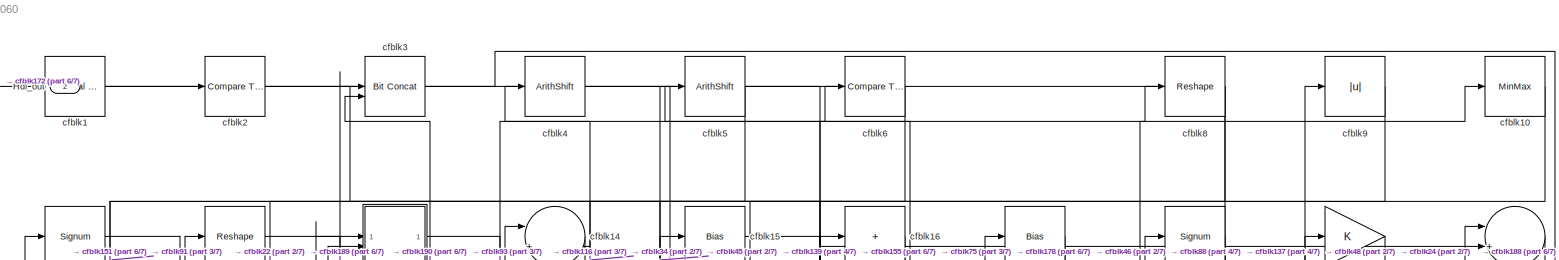
[diagram: root canvas - part 1/7, full width, top band]
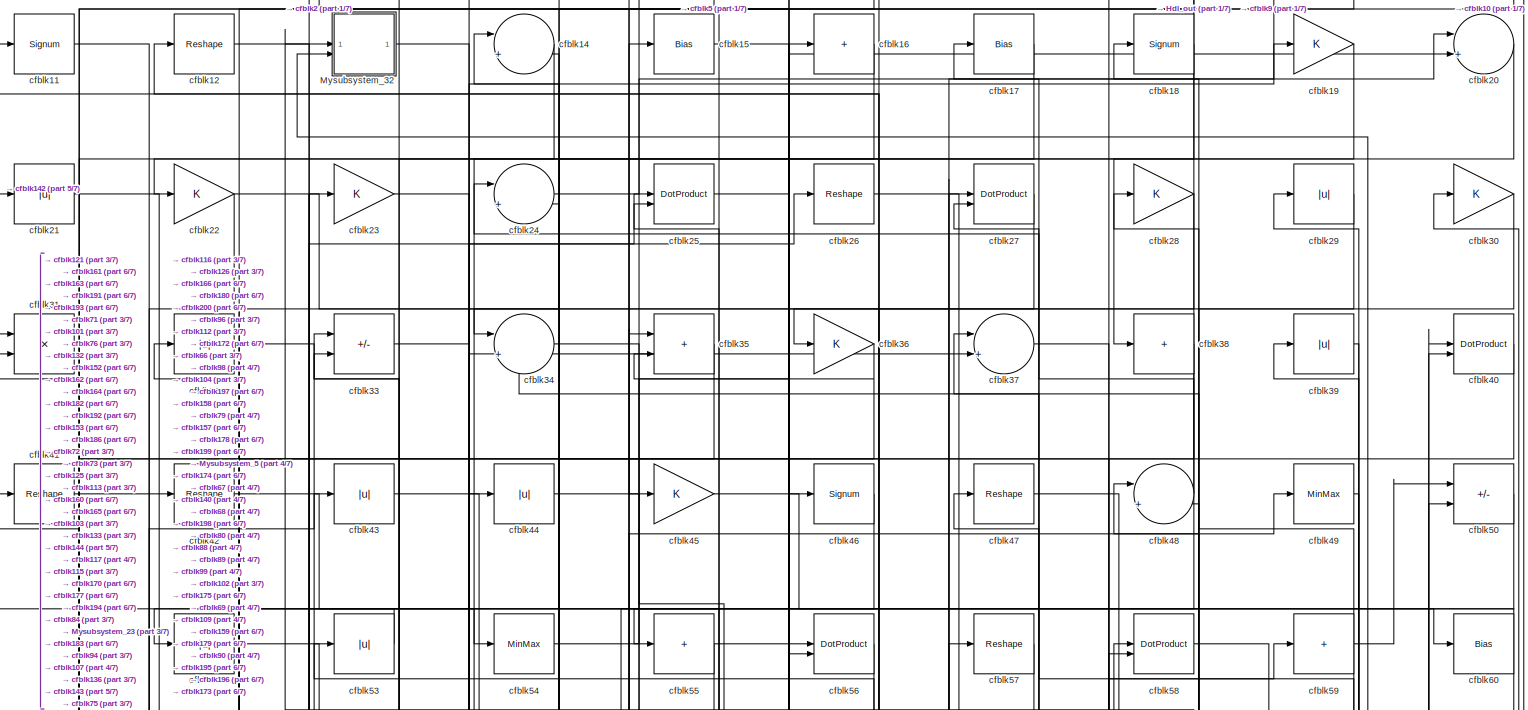
[diagram: root canvas - part 2/7, full width, top band]
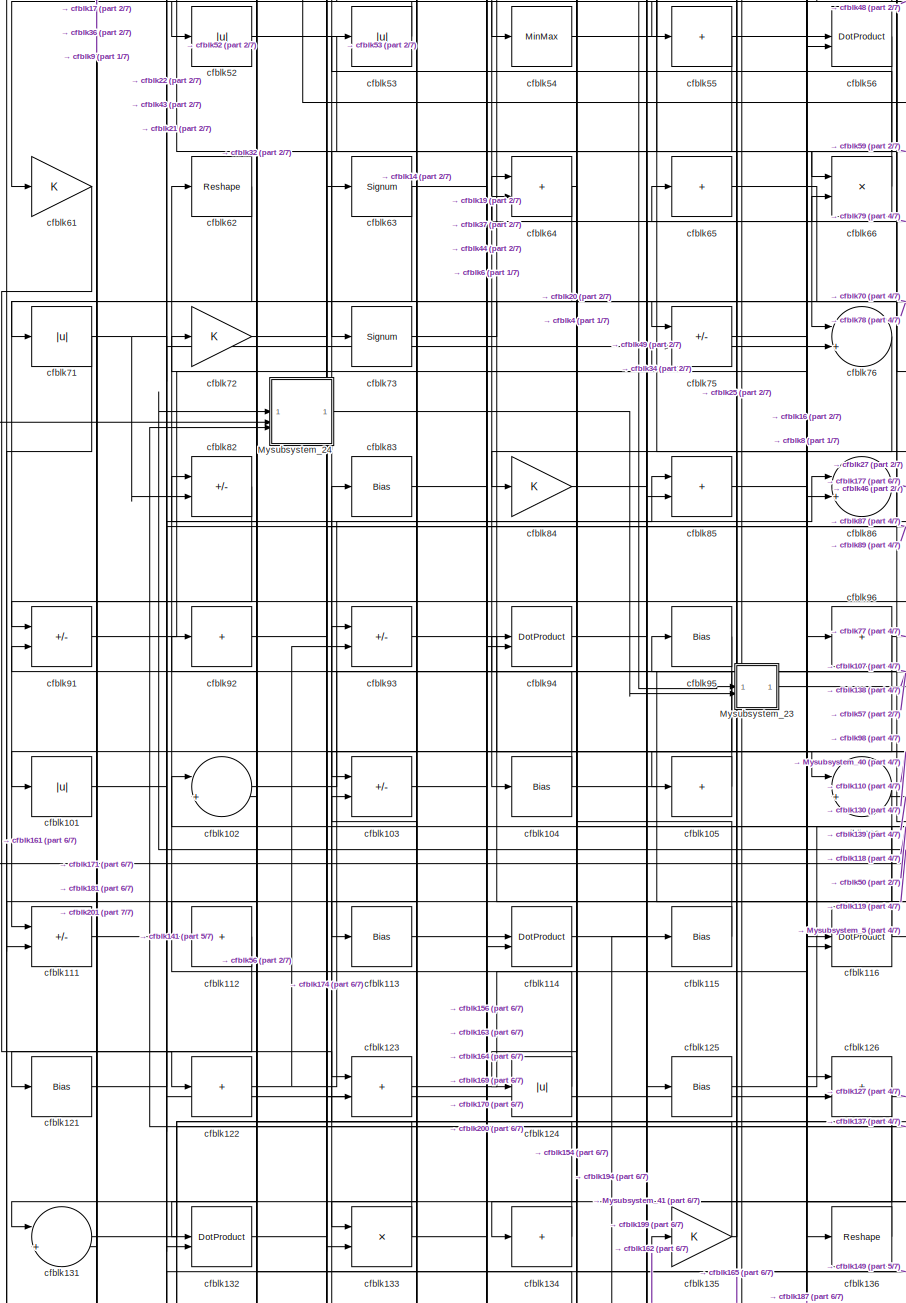
[diagram: root canvas - part 3/7, middle left region]
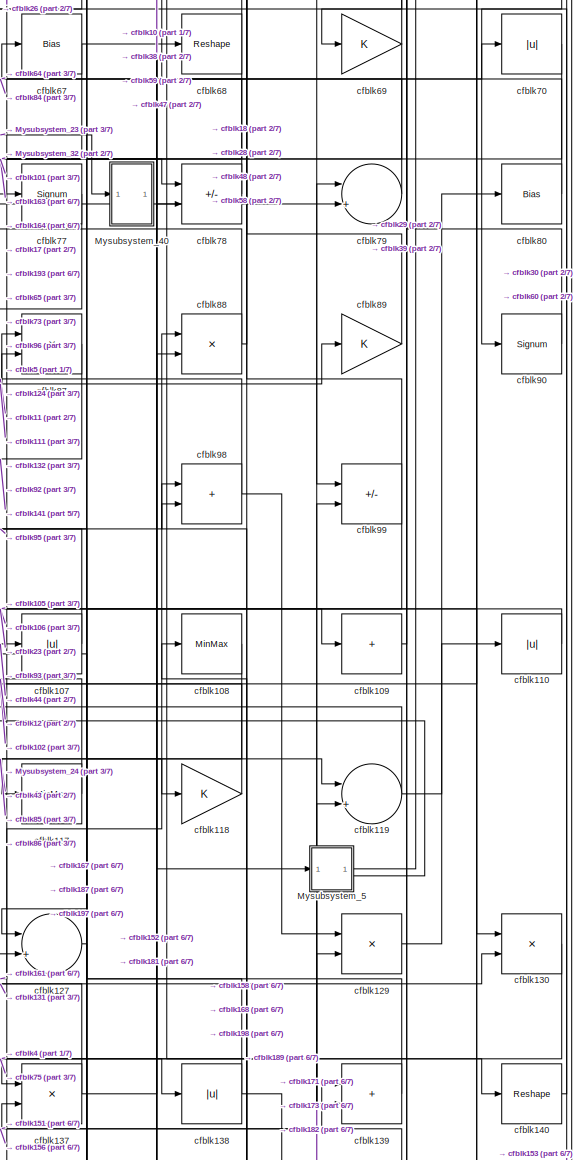
[diagram: root canvas - part 4/7, middle right region]
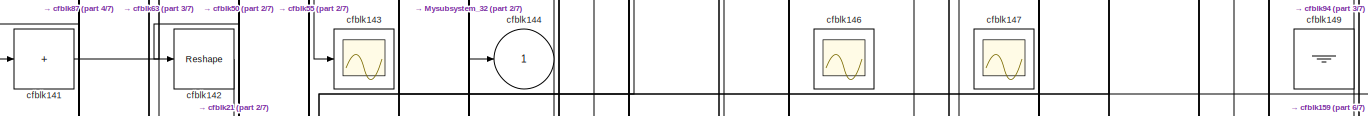
[diagram: root canvas - part 5/7, full width, bottom band]
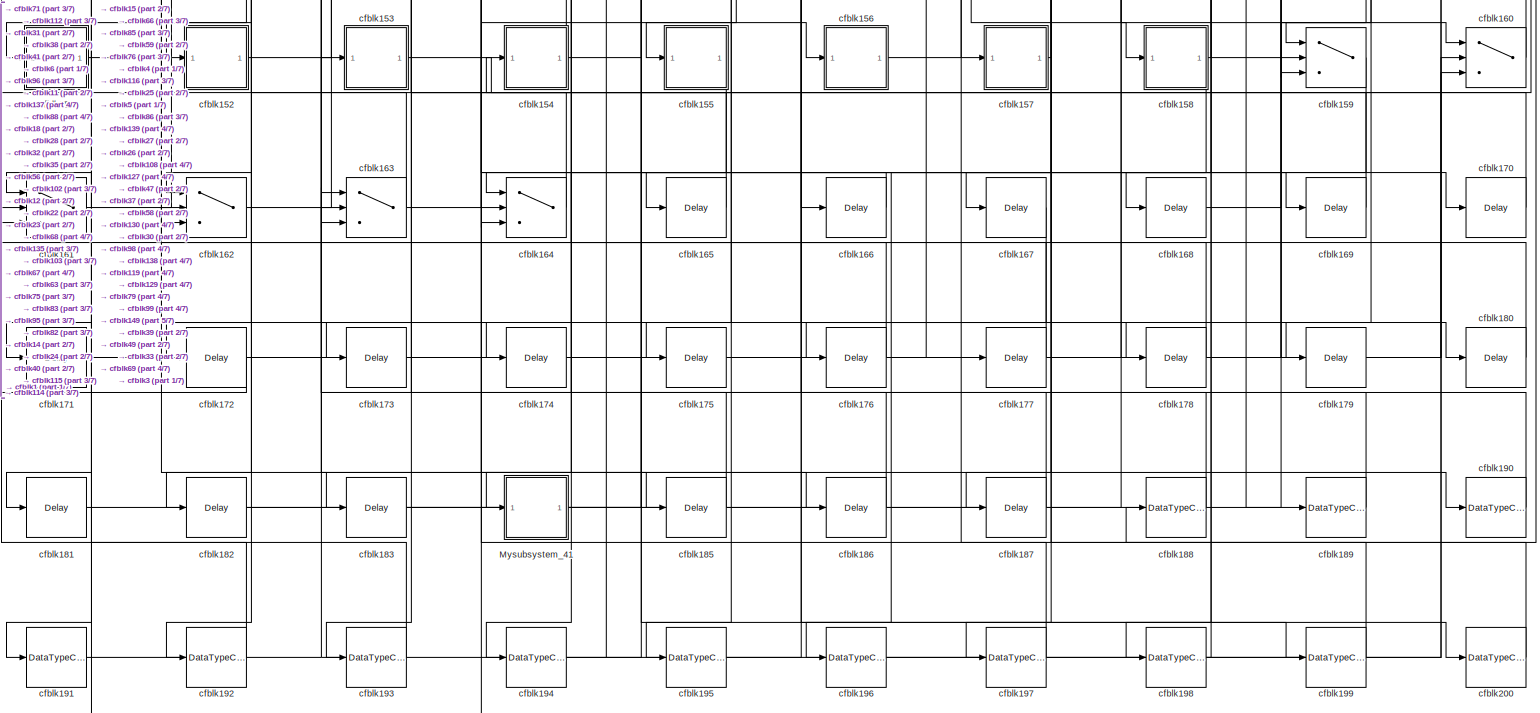
[diagram: root canvas - part 6/7, full width, bottom band]
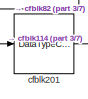
[diagram: root canvas - part 7/7, bottom left region]
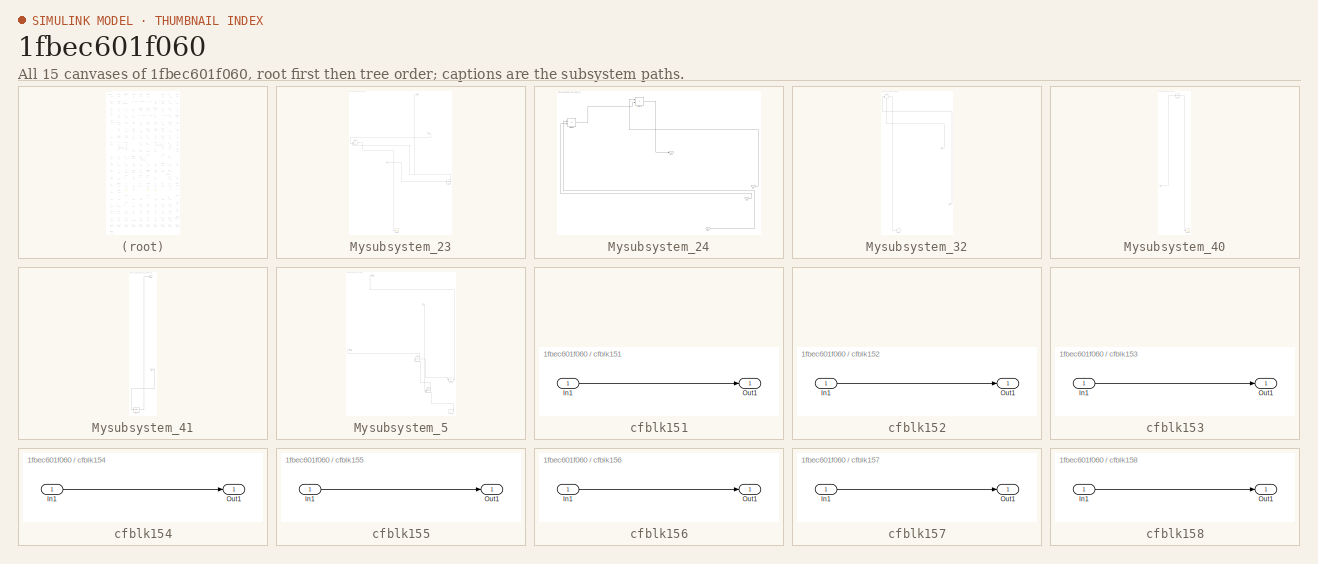
[diagram: thumbnail index - all 15 canvases of the model, root first then tree order]
MODEL slx_1fbec601f060
KIND model
CONFIG AbsTol = auto
CONFIG EnableMultiTasking = off
CONFIG FixedStep = auto
CONFIG MaxStep = auto
CONFIG MinStep = auto
CONFIG RelTol = 1e-3
CONFIG SampleTimeConstraint = Unconstrained
CONFIG SolverName = VariableStepAuto
CONFIG StartTime = 0.0
CONFIG StopTime = 10.0
BLOCK [Outport] Hdl_out
  OutDataTypeStr = uint8
  Port = 2
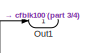
[diagram: Mysubsystem_23 - part 1/4, top center region]
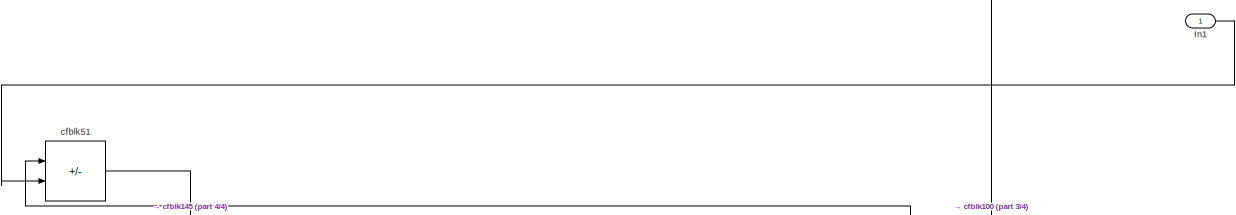
[diagram: Mysubsystem_23 - part 2/4, full width, top band]
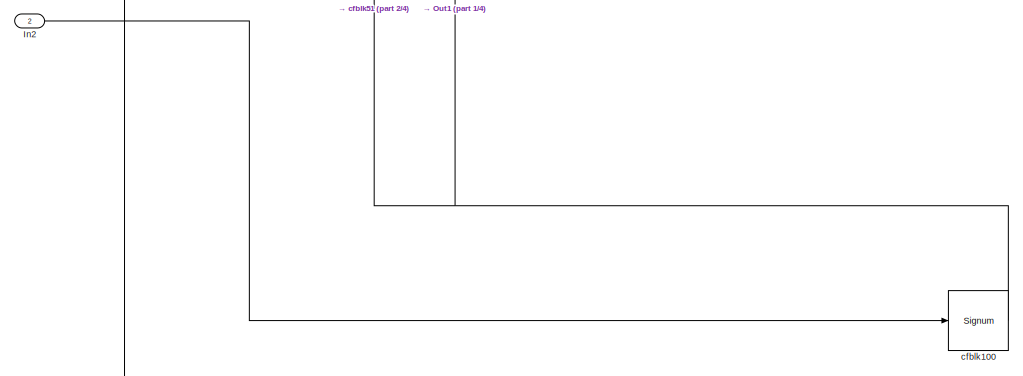
[diagram: Mysubsystem_23 - part 3/4, middle right region]
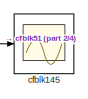
[diagram: Mysubsystem_23 - part 4/4, bottom center region]
BLOCK [SubSystem] Mysubsystem_23
  RTWFcnName = Mysubsystem_23
  RTWFcnNameOpts = User specified
  RTWFileNameOpts = Use function name
  RTWSystemCode = Reusable function
  TreatAsAtomicUnit = on
BLOCK [Inport] Mysubsystem_23/In1
BLOCK [Inport] Mysubsystem_23/In2
  Port = 2
BLOCK [Outport] Mysubsystem_23/Out1
BLOCK [Signum] Mysubsystem_23/cfblk100
BLOCK [Scope] Mysubsystem_23/cfblk145
  Floating = off
  NumInputPorts = 1
  ScopeSpecificationString = Simulink.scopes.TimeScopeBlockCfg('CurrentConfiguration', extmgr.ConfigurationSet(extmgr.Configuration('Core','General UI',true),extmgr.Configuration('Core','Source UI',true),extmgr.Configuration('Sources','WiredSimulink',true,'DataLoggingVariableName','ScopeData2','DataLoggingSaveFormat','Array','DataLoggingLimitDataPoints',true,'DataLoggingDecimation','1'),extmgr.Configuration('Visuals','Time Do...<+868ch>  <repeated x3 — deduplicated; at blocks: cfblk145, cfblk148, cfblk143>
BLOCK [Sum] Mysubsystem_23/cfblk51
  IconShape = rectangular
  Inputs = +-
BLOCK [SubSystem] Mysubsystem_24
  RTWFcnName = Mysubsystem_24
  RTWFcnNameOpts = User specified
  RTWFileNameOpts = Use function name
  RTWSystemCode = Reusable function
  TreatAsAtomicUnit = on
BLOCK [Inport] Mysubsystem_24/In1
BLOCK [Inport] Mysubsystem_24/In2
  Port = 2
BLOCK [Inport] Mysubsystem_24/In3
  Port = 3
BLOCK [Outport] Mysubsystem_24/Out1
BLOCK [Sum] Mysubsystem_24/cfblk74
  IconShape = rectangular
BLOCK [Product] Mysubsystem_24/cfblk81
  Inputs = */
  RndMeth = Zero
  SaturateOnIntegerOverflow = on
BLOCK [SubSystem] Mysubsystem_32
  RTWFcnName = Mysubsystem_32
  RTWFcnNameOpts = User specified
  RTWFileNameOpts = Use function name
  RTWSystemCode = Reusable function
  TreatAsAtomicUnit = on
BLOCK [Inport] Mysubsystem_32/In1
BLOCK [Inport] Mysubsystem_32/In2
  Port = 2
BLOCK [Sum] Mysubsystem_32/cfblk13
  Inputs = |++
BLOCK [Outport] Mysubsystem_32/cfblk144
  VectorParamsAs1DForOutWhenUnconnected = off
BLOCK [SubSystem] Mysubsystem_40
  RTWFcnName = Mysubsystem_40
  RTWFcnNameOpts = User specified
  RTWFileNameOpts = Use function name
  RTWSystemCode = Reusable function
  TreatAsAtomicUnit = on
BLOCK [Inport] Mysubsystem_40/In1
BLOCK [Scope] Mysubsystem_40/cfblk148
  Floating = off
  NumInputPorts = 1
BLOCK [Reshape] Mysubsystem_40/cfblk7
BLOCK [SubSystem] Mysubsystem_41
  RTWFcnName = Mysubsystem_41
  RTWFcnNameOpts = User specified
  RTWFileNameOpts = Use function name
  RTWSystemCode = Reusable function
  TreatAsAtomicUnit = on
BLOCK [Inport] Mysubsystem_41/In1
BLOCK [Outport] Mysubsystem_41/Out1
BLOCK [Delay] Mysubsystem_41/cfblk184
  InputPortMap = u0
  SampleTime = 1
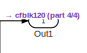
[diagram: Mysubsystem_5 - part 1/4, top left region]
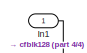
[diagram: Mysubsystem_5 - part 2/4, top right region]
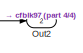
[diagram: Mysubsystem_5 - part 3/4, middle left region]
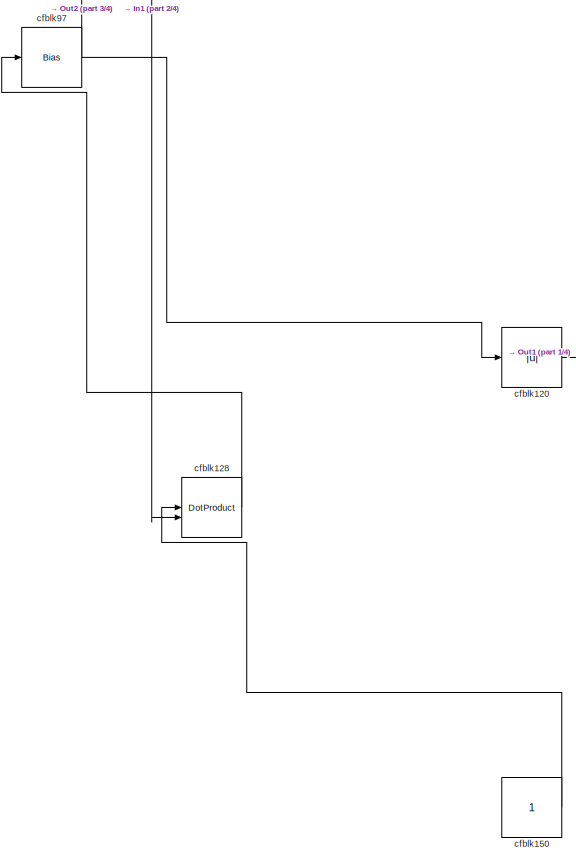
[diagram: Mysubsystem_5 - part 4/4, bottom right region]
BLOCK [SubSystem] Mysubsystem_5
  RTWFcnName = Mysubsystem_5
  RTWFcnNameOpts = User specified
  RTWFileNameOpts = Use function name
  RTWSystemCode = Reusable function
  TreatAsAtomicUnit = on
BLOCK [Inport] Mysubsystem_5/In1
BLOCK [Outport] Mysubsystem_5/Out1
BLOCK [Outport] Mysubsystem_5/Out2
  Port = 2
BLOCK [Abs] Mysubsystem_5/cfblk120
  SaturateOnIntegerOverflow = off
BLOCK [DotProduct] Mysubsystem_5/cfblk128
  OutDataTypeStr = Inherit: Inherit via internal rule
BLOCK [Constant] Mysubsystem_5/cfblk150
  SampleTime = -1
BLOCK [Bias] Mysubsystem_5/cfblk97
  Bias = 0.0
  SaturateOnIntegerOverflow = off
BLOCK [Reference] cfblk1  REF=hdlsllib/Logic and Bit
Operations/Interval Test
  SourceBlock = hdlsllib/Logic and Bit\nOperations/Interval Test
  SourceType = Interval Test
BLOCK [MinMax] cfblk10
  OutDataTypeStr = uint8
BLOCK [Abs] cfblk101
  OutDataTypeStr = uint8
  SaturateOnIntegerOverflow = off
BLOCK [Sum] cfblk102
  Inputs = |++
  OutDataTypeStr = uint8
BLOCK [Sum] cfblk103
  IconShape = rectangular
  Inputs = +-
  OutDataTypeStr = uint8
BLOCK [Bias] cfblk104
  Bias = 0.0
  SaturateOnIntegerOverflow = off
BLOCK [Sum] cfblk105
  IconShape = rectangular
  Inputs = +
  OutDataTypeStr = uint8
BLOCK [Sum] cfblk106
  Inputs = |++
  OutDataTypeStr = uint8
BLOCK [Abs] cfblk107
  OutDataTypeStr = uint8
  SaturateOnIntegerOverflow = off
BLOCK [MinMax] cfblk108
  OutDataTypeStr = uint8
BLOCK [Sum] cfblk109
  IconShape = rectangular
  Inputs = +
  OutDataTypeStr = uint8
BLOCK [Signum] cfblk11
BLOCK [Abs] cfblk110
  OutDataTypeStr = uint8
  SaturateOnIntegerOverflow = off
BLOCK [Sum] cfblk111
  IconShape = rectangular
  Inputs = +-
  OutDataTypeStr = uint8
BLOCK [Sum] cfblk112
  IconShape = rectangular
  Inputs = +
  OutDataTypeStr = uint8
BLOCK [Bias] cfblk113
  Bias = 0.0
  SaturateOnIntegerOverflow = off
BLOCK [DotProduct] cfblk114
  OutDataTypeStr = uint8
BLOCK [Bias] cfblk115
  Bias = 0.0
  SaturateOnIntegerOverflow = off
BLOCK [DotProduct] cfblk116
  OutDataTypeStr = uint8
BLOCK [MinMax] cfblk117
  OutDataTypeStr = uint8
BLOCK [Gain] cfblk118
  OutDataTypeStr = uint8
BLOCK [Sum] cfblk119
  Inputs = |++
  OutDataTypeStr = uint8
BLOCK [Reshape] cfblk12
BLOCK [Bias] cfblk121
  Bias = 0.0
  SaturateOnIntegerOverflow = off
BLOCK [Sum] cfblk122
  IconShape = rectangular
  Inputs = +
  OutDataTypeStr = uint8
BLOCK [Sum] cfblk123
  IconShape = rectangular
  OutDataTypeStr = uint8
BLOCK [Abs] cfblk124
  OutDataTypeStr = uint8
  SaturateOnIntegerOverflow = off
BLOCK [Bias] cfblk125
  Bias = 0.0
  SaturateOnIntegerOverflow = off
BLOCK [Sum] cfblk126
  IconShape = rectangular
  OutDataTypeStr = uint8
BLOCK [Sum] cfblk127
  Inputs = |++
  OutDataTypeStr = uint8
BLOCK [Product] cfblk129
  Inputs = */
  OutDataTypeStr = uint8
  RndMeth = Zero
  SaturateOnIntegerOverflow = on
BLOCK [Product] cfblk130
  Inputs = */
  OutDataTypeStr = uint8
  RndMeth = Zero
  SaturateOnIntegerOverflow = on
BLOCK [Sum] cfblk131
  Inputs = |++
  OutDataTypeStr = uint8
BLOCK [DotProduct] cfblk132
  OutDataTypeStr = uint8
BLOCK [Product] cfblk133
  Inputs = */
  OutDataTypeStr = uint8
  RndMeth = Zero
  SaturateOnIntegerOverflow = on
BLOCK [Sum] cfblk134
  IconShape = rectangular
  Inputs = +
  OutDataTypeStr = uint8
BLOCK [Gain] cfblk135
  OutDataTypeStr = uint8
BLOCK [Reshape] cfblk136
BLOCK [Product] cfblk137
  Inputs = */
  OutDataTypeStr = uint8
  RndMeth = Zero
  SaturateOnIntegerOverflow = on
BLOCK [Abs] cfblk138
  OutDataTypeStr = uint8
  SaturateOnIntegerOverflow = off
BLOCK [Sum] cfblk139
  IconShape = rectangular
  OutDataTypeStr = uint8
BLOCK [Sum] cfblk14
  Inputs = |++
  OutDataTypeStr = uint8
BLOCK [Reshape] cfblk140
BLOCK [Sum] cfblk141
  IconShape = rectangular
  Inputs = +
  OutDataTypeStr = uint8
BLOCK [Reshape] cfblk142
BLOCK [Scope] cfblk143
  Floating = off
  NumInputPorts = 1
BLOCK [Outport] cfblk144
  OutDataTypeStr = uint8
  VectorParamsAs1DForOutWhenUnconnected = off
BLOCK [Scope] cfblk146
  Floating = on
  NumInputPorts = 1
  ScopeSpecificationString = Simulink.scopes.TimeScopeBlockCfg('CurrentConfiguration', extmgr.ConfigurationSet(extmgr.Configuration('Core','General UI',true,'FigureColor',[0.156862745098039 0.156862745098039 0.156862745098039]),extmgr.Configuration('Core','Source UI',true),extmgr.Configuration('Sources','WiredSimulink',true,'DataLoggingVariableName','ScopeData1','DataLoggingSaveFormat','StructureWithTime','DataLoggingLimitDat...<+2713ch>
BLOCK [Scope] cfblk147
  Floating = on
  NumInputPorts = 1
  ScopeSpecificationString = Simulink.scopes.TimeScopeBlockCfg('CurrentConfiguration', extmgr.ConfigurationSet(extmgr.Configuration('Core','General UI',true,'FigureColor',[0.156862745098039 0.156862745098039 0.156862745098039]),extmgr.Configuration('Core','Source UI',true),extmgr.Configuration('Sources','WiredSimulink',true,'DataLoggingVariableName','ScopeData1','DataLoggingSaveFormat','StructureWithTime','DataLoggingLimitDat...<+2713ch>
BLOCK [Ground] cfblk149
BLOCK [Bias] cfblk15
  Bias = 0.0
  SaturateOnIntegerOverflow = off
BLOCK [SubSystem] cfblk151
  LibrarySourceBlock = hdlsllib/Ports &\nSubsystems/Subsystem
BLOCK [Inport] cfblk151/In1
BLOCK [Outport] cfblk151/Out1
BLOCK [SubSystem] cfblk152
  LibrarySourceBlock = hdlsllib/Ports &\nSubsystems/Subsystem
BLOCK [Inport] cfblk152/In1
BLOCK [Outport] cfblk152/Out1
BLOCK [SubSystem] cfblk153
  LibrarySourceBlock = hdlsllib/Ports &\nSubsystems/Subsystem
BLOCK [Inport] cfblk153/In1
BLOCK [Outport] cfblk153/Out1
BLOCK [SubSystem] cfblk154
  LibrarySourceBlock = hdlsllib/Ports &\nSubsystems/Subsystem
BLOCK [Inport] cfblk154/In1
BLOCK [Outport] cfblk154/Out1
BLOCK [SubSystem] cfblk155
  LibrarySourceBlock = hdlsllib/Ports &\nSubsystems/Subsystem
BLOCK [Inport] cfblk155/In1
BLOCK [Outport] cfblk155/Out1
BLOCK [SubSystem] cfblk156
  LibrarySourceBlock = hdlsllib/Ports &\nSubsystems/Subsystem
BLOCK [Inport] cfblk156/In1
BLOCK [Outport] cfblk156/Out1
BLOCK [SubSystem] cfblk157
  LibrarySourceBlock = hdlsllib/Ports &\nSubsystems/Subsystem
BLOCK [Inport] cfblk157/In1
BLOCK [Outport] cfblk157/Out1
BLOCK [SubSystem] cfblk158
  LibrarySourceBlock = hdlsllib/Ports &\nSubsystems/Subsystem
BLOCK [Inport] cfblk158/In1
BLOCK [Outport] cfblk158/Out1
BLOCK [Switch] cfblk159
  InputSameDT = off
  OutDataTypeStr = uint8
  SaturateOnIntegerOverflow = off
BLOCK [Sum] cfblk16
  IconShape = rectangular
  Inputs = +
  OutDataTypeStr = uint8
BLOCK [Switch] cfblk160
  InputSameDT = off
  OutDataTypeStr = uint8
  SaturateOnIntegerOverflow = off
BLOCK [Switch] cfblk161
  InputSameDT = off
  OutDataTypeStr = uint8
  SaturateOnIntegerOverflow = off
BLOCK [Switch] cfblk162
  InputSameDT = off
  OutDataTypeStr = uint8
  SaturateOnIntegerOverflow = off
BLOCK [Switch] cfblk163
  InputSameDT = off
  OutDataTypeStr = uint8
  SaturateOnIntegerOverflow = off
BLOCK [Switch] cfblk164
  InputSameDT = off
  OutDataTypeStr = uint8
  SaturateOnIntegerOverflow = off
BLOCK [Delay] cfblk165
  InputPortMap = u0
  SampleTime = 1
BLOCK [Delay] cfblk166
  InputPortMap = u0
  SampleTime = 1
BLOCK [Delay] cfblk167
  InputPortMap = u0
  SampleTime = 1
BLOCK [Delay] cfblk168
  InputPortMap = u0
  SampleTime = 1
BLOCK [Delay] cfblk169
  InputPortMap = u0
  SampleTime = 1
BLOCK [Bias] cfblk17
  Bias = 0.0
  SaturateOnIntegerOverflow = off
BLOCK [Delay] cfblk170
  InputPortMap = u0
  SampleTime = 1
BLOCK [Delay] cfblk171
  InputPortMap = u0
  SampleTime = 1
BLOCK [Delay] cfblk172
  InputPortMap = u0
  SampleTime = 1
BLOCK [Delay] cfblk173
  InputPortMap = u0
  SampleTime = 1
BLOCK [Delay] cfblk174
  InputPortMap = u0
  SampleTime = 1
BLOCK [Delay] cfblk175
  InputPortMap = u0
  SampleTime = 1
BLOCK [Delay] cfblk176
  InputPortMap = u0
  SampleTime = 1
BLOCK [Delay] cfblk177
  InputPortMap = u0
  SampleTime = 1
BLOCK [Delay] cfblk178
  InputPortMap = u0
  SampleTime = 1
BLOCK [Delay] cfblk179
  InputPortMap = u0
  SampleTime = 1
BLOCK [Signum] cfblk18
BLOCK [Delay] cfblk180
  InputPortMap = u0
  SampleTime = 1
BLOCK [Delay] cfblk181
  InputPortMap = u0
  SampleTime = 1
BLOCK [Delay] cfblk182
  InputPortMap = u0
  SampleTime = 1
BLOCK [Delay] cfblk183
  InputPortMap = u0
  SampleTime = 1
BLOCK [Delay] cfblk185
  InputPortMap = u0
  SampleTime = 1
BLOCK [Delay] cfblk186
  InputPortMap = u0
  SampleTime = 1
BLOCK [Delay] cfblk187
  InputPortMap = u0
  SampleTime = 1
BLOCK [DataTypeConversion] cfblk188
  OutDataTypeStr = uint8
  RndMeth = Floor
  SaturateOnIntegerOverflow = off
BLOCK [DataTypeConversion] cfblk189
  OutDataTypeStr = uint8
  RndMeth = Floor
  SaturateOnIntegerOverflow = off
BLOCK [Gain] cfblk19
  OutDataTypeStr = uint8
BLOCK [DataTypeConversion] cfblk190
  OutDataTypeStr = uint8
  RndMeth = Floor
  SaturateOnIntegerOverflow = off
BLOCK [DataTypeConversion] cfblk191
  OutDataTypeStr = uint8
  RndMeth = Floor
  SaturateOnIntegerOverflow = off
BLOCK [DataTypeConversion] cfblk192
  OutDataTypeStr = uint8
  RndMeth = Floor
  SaturateOnIntegerOverflow = off
BLOCK [DataTypeConversion] cfblk193
  OutDataTypeStr = uint8
  RndMeth = Floor
  SaturateOnIntegerOverflow = off
BLOCK [DataTypeConversion] cfblk194
  OutDataTypeStr = uint8
  RndMeth = Floor
  SaturateOnIntegerOverflow = off
BLOCK [DataTypeConversion] cfblk195
  OutDataTypeStr = uint8
  RndMeth = Floor
  SaturateOnIntegerOverflow = off
BLOCK [DataTypeConversion] cfblk196
  OutDataTypeStr = uint8
  RndMeth = Floor
  SaturateOnIntegerOverflow = off
BLOCK [DataTypeConversion] cfblk197
  OutDataTypeStr = uint8
  RndMeth = Floor
  SaturateOnIntegerOverflow = off
BLOCK [DataTypeConversion] cfblk198
  OutDataTypeStr = uint8
  RndMeth = Floor
  SaturateOnIntegerOverflow = off
BLOCK [DataTypeConversion] cfblk199
  OutDataTypeStr = uint8
  RndMeth = Floor
  SaturateOnIntegerOverflow = off
BLOCK [Reference] cfblk2  REF=hdlsllib/Logic and Bit
Operations/Compare
To Constant
  SourceBlock = hdlsllib/Logic and Bit\nOperations/Compare\nTo Constant
  SourceType = Compare To Constant
BLOCK [Sum] cfblk20
  Inputs = |++
  OutDataTypeStr = uint8
BLOCK [DataTypeConversion] cfblk200
  OutDataTypeStr = uint8
  RndMeth = Floor
  SaturateOnIntegerOverflow = off
BLOCK [DataTypeConversion] cfblk201
  OutDataTypeStr = uint8
  RndMeth = Floor
  SaturateOnIntegerOverflow = off
BLOCK [Abs] cfblk21
  OutDataTypeStr = uint8
  SaturateOnIntegerOverflow = off
BLOCK [Gain] cfblk22
  OutDataTypeStr = uint8
BLOCK [Gain] cfblk23
  OutDataTypeStr = uint8
BLOCK [Sum] cfblk24
  Inputs = |++
  OutDataTypeStr = uint8
BLOCK [DotProduct] cfblk25
  OutDataTypeStr = uint8
BLOCK [Reshape] cfblk26
BLOCK [DotProduct] cfblk27
  OutDataTypeStr = uint8
BLOCK [Gain] cfblk28
  OutDataTypeStr = uint8
BLOCK [Abs] cfblk29
  OutDataTypeStr = uint8
  SaturateOnIntegerOverflow = off
BLOCK [Reference] cfblk3  REF=hdlsllib/Logic and Bit
Operations/Bit Concat
  SourceBlock = hdlsllib/Logic and Bit\nOperations/Bit Concat
  SourceType = Bit Concat
BLOCK [Gain] cfblk30
  OutDataTypeStr = uint8
BLOCK [Product] cfblk31
  Inputs = */
  OutDataTypeStr = uint8
  RndMeth = Zero
  SaturateOnIntegerOverflow = on
BLOCK [Abs] cfblk32
  OutDataTypeStr = uint8
  SaturateOnIntegerOverflow = off
BLOCK [Sum] cfblk33
  IconShape = rectangular
  Inputs = +-
  OutDataTypeStr = uint8
BLOCK [Sum] cfblk34
  Inputs = |++
  OutDataTypeStr = uint8
BLOCK [Sum] cfblk35
  IconShape = rectangular
  OutDataTypeStr = uint8
BLOCK [Gain] cfblk36
  OutDataTypeStr = uint8
BLOCK [Sum] cfblk37
  Inputs = |++
  OutDataTypeStr = uint8
BLOCK [Sum] cfblk38
  IconShape = rectangular
  Inputs = +
  OutDataTypeStr = uint8
BLOCK [Abs] cfblk39
  OutDataTypeStr = uint8
  SaturateOnIntegerOverflow = off
BLOCK [ArithShift] cfblk4
  BitShiftNumber = 8
  InputPortMap = u0
BLOCK [DotProduct] cfblk40
  OutDataTypeStr = uint8
BLOCK [Reshape] cfblk41
BLOCK [Reshape] cfblk42
BLOCK [Abs] cfblk43
  OutDataTypeStr = uint8
  SaturateOnIntegerOverflow = off
BLOCK [Abs] cfblk44
  OutDataTypeStr = uint8
  SaturateOnIntegerOverflow = off
BLOCK [Gain] cfblk45
  OutDataTypeStr = uint8
BLOCK [Signum] cfblk46
BLOCK [Reshape] cfblk47
BLOCK [Sum] cfblk48
  Inputs = |++
  OutDataTypeStr = uint8
BLOCK [MinMax] cfblk49
  OutDataTypeStr = uint8
BLOCK [ArithShift] cfblk5
  BitShiftNumber = 8
  InputPortMap = u0
BLOCK [Sum] cfblk50
  IconShape = rectangular
  Inputs = +-
  OutDataTypeStr = uint8
BLOCK [Abs] cfblk52
  OutDataTypeStr = uint8
  SaturateOnIntegerOverflow = off
BLOCK [Abs] cfblk53
  OutDataTypeStr = uint8
  SaturateOnIntegerOverflow = off
BLOCK [MinMax] cfblk54
  OutDataTypeStr = uint8
BLOCK [Sum] cfblk55
  IconShape = rectangular
  Inputs = +
  OutDataTypeStr = uint8
BLOCK [DotProduct] cfblk56
  OutDataTypeStr = uint8
BLOCK [Reshape] cfblk57
BLOCK [DotProduct] cfblk58
  OutDataTypeStr = uint8
BLOCK [Sum] cfblk59
  IconShape = rectangular
  Inputs = +
  OutDataTypeStr = uint8
BLOCK [Reference] cfblk6  REF=hdlsllib/Logic and Bit
Operations/Compare
To Zero
  SourceBlock = hdlsllib/Logic and Bit\nOperations/Compare\nTo Zero
  SourceType = Compare To Zero
BLOCK [Bias] cfblk60
  Bias = 0.0
  SaturateOnIntegerOverflow = off
BLOCK [Gain] cfblk61
  OutDataTypeStr = uint8
BLOCK [Reshape] cfblk62
BLOCK [Signum] cfblk63
BLOCK [Sum] cfblk64
  IconShape = rectangular
  OutDataTypeStr = uint8
BLOCK [Sum] cfblk65
  IconShape = rectangular
  Inputs = +
  OutDataTypeStr = uint8
BLOCK [Product] cfblk66
  Inputs = */
  OutDataTypeStr = uint8
  RndMeth = Zero
  SaturateOnIntegerOverflow = on
BLOCK [Bias] cfblk67
  Bias = 0.0
  SaturateOnIntegerOverflow = off
BLOCK [Reshape] cfblk68
BLOCK [Gain] cfblk69
  OutDataTypeStr = uint8
BLOCK [Abs] cfblk70
  OutDataTypeStr = uint8
  SaturateOnIntegerOverflow = off
BLOCK [Abs] cfblk71
  OutDataTypeStr = uint8
  SaturateOnIntegerOverflow = off
BLOCK [Gain] cfblk72
  OutDataTypeStr = uint8
BLOCK [Signum] cfblk73
BLOCK [Sum] cfblk75
  IconShape = rectangular
  Inputs = +-
  OutDataTypeStr = uint8
BLOCK [Sum] cfblk76
  Inputs = |++
  OutDataTypeStr = uint8
BLOCK [Signum] cfblk77
BLOCK [Sum] cfblk78
  IconShape = rectangular
  Inputs = +-
  OutDataTypeStr = uint8
BLOCK [Sum] cfblk79
  Inputs = |++
  OutDataTypeStr = uint8
BLOCK [Reshape] cfblk8
BLOCK [Bias] cfblk80
  Bias = 0.0
  SaturateOnIntegerOverflow = off
BLOCK [Sum] cfblk82
  IconShape = rectangular
  Inputs = +-
  OutDataTypeStr = uint8
BLOCK [Bias] cfblk83
  Bias = 0.0
  SaturateOnIntegerOverflow = off
BLOCK [Gain] cfblk84
  OutDataTypeStr = uint8
BLOCK [Sum] cfblk85
  IconShape = rectangular
  OutDataTypeStr = uint8
BLOCK [Sum] cfblk86
  Inputs = |++
  OutDataTypeStr = uint8
BLOCK [Product] cfblk87
  Inputs = */
  OutDataTypeStr = uint8
  RndMeth = Zero
  SaturateOnIntegerOverflow = on
BLOCK [Product] cfblk88
  Inputs = */
  OutDataTypeStr = uint8
  RndMeth = Zero
  SaturateOnIntegerOverflow = on
BLOCK [Gain] cfblk89
  OutDataTypeStr = uint8
BLOCK [Abs] cfblk9
  OutDataTypeStr = uint8
  SaturateOnIntegerOverflow = off
BLOCK [Signum] cfblk90
BLOCK [Sum] cfblk91
  IconShape = rectangular
  Inputs = +-
  OutDataTypeStr = uint8
BLOCK [Sum] cfblk92
  IconShape = rectangular
  Inputs = +
  OutDataTypeStr = uint8
BLOCK [Sum] cfblk93
  IconShape = rectangular
  Inputs = +-
  OutDataTypeStr = uint8
BLOCK [DotProduct] cfblk94
  OutDataTypeStr = uint8
BLOCK [Bias] cfblk95
  Bias = 0.0
  SaturateOnIntegerOverflow = off
BLOCK [Sum] cfblk96
  IconShape = rectangular
  Inputs = +
  OutDataTypeStr = uint8
BLOCK [Sum] cfblk98
  IconShape = rectangular
  OutDataTypeStr = uint8
BLOCK [Sum] cfblk99
  IconShape = rectangular
  Inputs = +-
  OutDataTypeStr = uint8
LINE Mysubsystem_23/In1:1 -> Mysubsystem_23/cfblk51:2
LINE Mysubsystem_23/In2:1 -> Mysubsystem_23/cfblk100:1
NET Mysubsystem_23/cfblk100:1 -> Mysubsystem_23/Out1:1, Mysubsystem_23/cfblk51:1
LINE Mysubsystem_23/cfblk51:1 -> Mysubsystem_23/cfblk145:1
LINE Mysubsystem_23:1 -> Mysubsystem_40:1
LINE Mysubsystem_24/In1:1 -> Mysubsystem_24/cfblk74:1
LINE Mysubsystem_24/In2:1 -> Mysubsystem_24/cfblk81:2
LINE Mysubsystem_24/In3:1 -> Mysubsystem_24/cfblk81:1
LINE Mysubsystem_24/cfblk74:1 -> Mysubsystem_24/Out1:1
LINE Mysubsystem_24/cfblk81:1 -> Mysubsystem_24/cfblk74:2
LINE Mysubsystem_24:1 -> Mysubsystem_23:2
LINE Mysubsystem_32/In1:1 -> Mysubsystem_32/cfblk13:2
LINE Mysubsystem_32/In2:1 -> Mysubsystem_32/cfblk13:1
LINE Mysubsystem_32/cfblk13:1 -> Mysubsystem_32/cfblk144:1
LINE Mysubsystem_32:1 -> cfblk144:1
LINE Mysubsystem_40/In1:1 -> Mysubsystem_40/cfblk7:1
LINE Mysubsystem_40/cfblk7:1 -> Mysubsystem_40/cfblk148:1
LINE Mysubsystem_41/In1:1 -> Mysubsystem_41/cfblk184:1
LINE Mysubsystem_41/cfblk184:1 -> Mysubsystem_41/Out1:1
LINE Mysubsystem_41:1 -> cfblk85:2
LINE Mysubsystem_5/In1:1 -> Mysubsystem_5/cfblk128:2
LINE Mysubsystem_5/cfblk120:1 -> Mysubsystem_5/Out1:1
LINE Mysubsystem_5/cfblk128:1 -> Mysubsystem_5/cfblk97:1
LINE Mysubsystem_5/cfblk150:1 -> Mysubsystem_5/cfblk128:1
NET Mysubsystem_5/cfblk97:1 -> Mysubsystem_5/Out2:1, Mysubsystem_5/cfblk120:1
LINE Mysubsystem_5:1 -> Mysubsystem_32:2
LINE Mysubsystem_5:2 -> Mysubsystem_24:2
NET cfblk101:1 -> cfblk123:1, cfblk127:2, cfblk43:1, cfblk76:2
NET cfblk102:1 -> cfblk174:1, cfblk98:1
LINE cfblk103:1 -> cfblk37:2
NET cfblk104:1 -> cfblk126:1, cfblk57:1, cfblk91:2
LINE cfblk105:1 -> cfblk83:1
LINE cfblk106:1 -> cfblk111:2
LINE cfblk107:1 -> cfblk65:1
LINE cfblk108:1 -> cfblk197:1
LINE cfblk109:1 -> cfblk39:1
LINE cfblk10:1 -> cfblk34:1
NET cfblk110:1 -> cfblk105:1, cfblk106:1
LINE cfblk111:1 -> cfblk87:2
LINE cfblk112:1 -> cfblk171:1
LINE cfblk113:1 -> cfblk19:1
LINE cfblk114:1 -> cfblk199:1
LINE cfblk115:1 -> cfblk14:1
NET cfblk116:1 -> cfblk20:1, cfblk4:1
LINE cfblk117:1 -> cfblk12:1
LINE cfblk118:1 -> cfblk102:1
NET cfblk119:1 -> Mysubsystem_24:1, cfblk80:1
LINE cfblk11:1 -> cfblk173:1
LINE cfblk121:1 -> cfblk86:1
NET cfblk122:1 -> cfblk85:1, cfblk93:2
LINE cfblk123:1 -> cfblk86:2
LINE cfblk124:1 -> cfblk62:1
LINE cfblk125:1 -> cfblk50:2
LINE cfblk126:1 -> cfblk131:2
LINE cfblk127:1 -> cfblk187:1
LINE cfblk129:1 -> cfblk110:1
NET cfblk12:1 -> cfblk153:1, cfblk186:1
NET cfblk130:1 -> cfblk137:1, cfblk167:1, cfblk168:1
LINE cfblk131:1 -> cfblk130:2
LINE cfblk132:1 -> cfblk87:1
NET cfblk133:1 -> cfblk44:1, cfblk92:1
LINE cfblk134:1 -> cfblk93:1
NET cfblk135:1 -> cfblk61:1, cfblk64:2
LINE cfblk136:1 -> cfblk72:1
NET cfblk137:1 -> Mysubsystem_24:3, cfblk10:1
NET cfblk138:1 -> cfblk189:1, cfblk95:1
LINE cfblk139:1 -> cfblk106:2
LINE cfblk140:1 -> cfblk30:1
LINE cfblk141:1 -> cfblk63:1
LINE cfblk142:1 -> cfblk21:1
NET cfblk149:1 -> cfblk159:3, cfblk94:1
LINE cfblk14:1 -> cfblk113:1
LINE cfblk151/In1:1 -> cfblk151/Out1:1
NET cfblk151:1 -> cfblk137:2, cfblk183:1
LINE cfblk152/In1:1 -> cfblk152/Out1:1
NET cfblk152:1 -> cfblk190:1, cfblk68:1
LINE cfblk153/In1:1 -> cfblk153/Out1:1
NET cfblk153:1 -> cfblk185:1, cfblk69:1
LINE cfblk154/In1:1 -> cfblk154/Out1:1
NET cfblk154:1 -> cfblk66:2, cfblk82:1
LINE cfblk155/In1:1 -> cfblk155/Out1:1
LINE cfblk155:1 -> Mysubsystem_41:1
LINE cfblk156/In1:1 -> cfblk156/Out1:1
NET cfblk156:1 -> cfblk139:1, cfblk157:1
LINE cfblk157/In1:1 -> cfblk157/Out1:1
LINE cfblk157:1 -> cfblk47:1
LINE cfblk158/In1:1 -> cfblk158/Out1:1
NET cfblk158:1 -> cfblk159:2, cfblk195:1, cfblk98:2
LINE cfblk159:1 -> cfblk176:1
LINE cfblk15:1 -> cfblk200:1
LINE cfblk160:1 -> cfblk33:1
LINE cfblk161:1 -> cfblk88:1
LINE cfblk162:1 -> cfblk135:1
NET cfblk163:1 -> cfblk41:1, cfblk75:2
LINE cfblk164:1 -> cfblk32:1
LINE cfblk165:1 -> cfblk33:2
LINE cfblk166:1 -> cfblk164:1
LINE cfblk167:1 -> cfblk196:1
LINE cfblk168:1 -> cfblk119:2
LINE cfblk169:1 -> cfblk103:2
NET cfblk16:1 -> cfblk104:1, cfblk116:2
LINE cfblk170:1 -> cfblk24:2
LINE cfblk171:1 -> cfblk129:2
LINE cfblk172:1 -> cfblk1:1
LINE cfblk173:1 -> cfblk99:2
LINE cfblk174:1 -> cfblk58:2
LINE cfblk175:1 -> cfblk160:3
LINE cfblk176:1 -> cfblk162:2
LINE cfblk177:1 -> cfblk14:2
LINE cfblk178:1 -> cfblk37:1
LINE cfblk179:1 -> cfblk160:2
LINE cfblk17:1 -> cfblk121:1
LINE cfblk180:1 -> cfblk161:2
LINE cfblk181:1 -> cfblk88:2
LINE cfblk182:1 -> cfblk79:1
LINE cfblk183:1 -> cfblk35:1
LINE cfblk185:1 -> cfblk163:2
LINE cfblk186:1 -> cfblk163:1
LINE cfblk187:1 -> cfblk116:1
LINE cfblk188:1 -> cfblk154:1
LINE cfblk189:1 -> cfblk3:1
LINE cfblk18:1 -> cfblk152:1
LINE cfblk190:1 -> cfblk3:2
NET cfblk191:1 -> cfblk15:1, cfblk23:1
LINE cfblk192:1 -> cfblk31:1
LINE cfblk193:1 -> cfblk31:2
NET cfblk194:1 -> cfblk115:1, cfblk56:1
LINE cfblk195:1 -> cfblk40:1
LINE cfblk196:1 -> cfblk40:2
LINE cfblk197:1 -> cfblk27:1
LINE cfblk198:1 -> cfblk108:1
LINE cfblk199:1 -> cfblk27:2
LINE cfblk19:1 -> cfblk38:1
LINE cfblk1:1 -> cfblk2:1
LINE cfblk200:1 -> cfblk114:1
LINE cfblk201:1 -> cfblk114:2
NET cfblk20:1 -> cfblk126:2, cfblk84:1
LINE cfblk21:1 -> cfblk76:1
NET cfblk22:1 -> cfblk132:2, cfblk180:1, cfblk94:2, cfblk96:1
LINE cfblk23:1 -> cfblk109:1
LINE cfblk24:1 -> cfblk9:1
LINE cfblk25:1 -> cfblk166:1
NET cfblk26:1 -> cfblk158:1, cfblk79:2
NET cfblk27:1 -> cfblk56:2, cfblk66:1
LINE cfblk28:1 -> cfblk182:1
LINE cfblk29:1 -> cfblk36:1
NET cfblk2:1 -> cfblk45:1, cfblk46:1
LINE cfblk30:1 -> cfblk198:1
LINE cfblk31:1 -> cfblk191:1
NET cfblk32:1 -> cfblk132:1, cfblk73:1
LINE cfblk33:1 -> cfblk26:1
LINE cfblk34:1 -> cfblk136:1
NET cfblk35:1 -> cfblk162:1, cfblk192:1
NET cfblk36:1 -> cfblk35:2, cfblk71:1
LINE cfblk37:1 -> cfblk160:1
NET cfblk38:1 -> Mysubsystem_5:1, cfblk161:1
LINE cfblk39:1 -> cfblk159:1
LINE cfblk3:1 -> cfblk188:1
LINE cfblk40:1 -> cfblk194:1
LINE cfblk41:1 -> cfblk42:1
LINE cfblk42:1 -> cfblk54:1
LINE cfblk43:1 -> cfblk117:1
LINE cfblk44:1 -> cfblk107:1
LINE cfblk45:1 -> cfblk60:1
LINE cfblk46:1 -> cfblk133:2
LINE cfblk47:1 -> cfblk140:1
NET cfblk48:1 -> Hdl_out:1, Mysubsystem_23:1, cfblk24:1
LINE cfblk49:1 -> cfblk179:1
NET cfblk4:1 -> cfblk139:2, cfblk155:1
LINE cfblk50:1 -> cfblk142:1
LINE cfblk52:1 -> cfblk125:1
LINE cfblk53:1 -> cfblk52:1
LINE cfblk54:1 -> cfblk16:1
NET cfblk55:1 -> cfblk143:1, cfblk20:2
NET cfblk56:1 -> cfblk112:1, cfblk172:1
LINE cfblk57:1 -> cfblk103:1
LINE cfblk58:1 -> cfblk99:1
NET cfblk59:1 -> cfblk102:2, cfblk175:1, cfblk34:2, cfblk50:1
NET cfblk5:1 -> cfblk178:1, cfblk22:1
NET cfblk60:1 -> cfblk55:1, cfblk90:1
LINE cfblk61:1 -> cfblk122:1
LINE cfblk62:1 -> cfblk111:1
NET cfblk63:1 -> cfblk131:1, cfblk169:1
NET cfblk64:1 -> cfblk133:1, cfblk134:1
LINE cfblk65:1 -> cfblk78:2
LINE cfblk66:1 -> cfblk53:1
NET cfblk67:1 -> cfblk193:1, cfblk59:1
NET cfblk68:1 -> Mysubsystem_32:1, cfblk163:3
NET cfblk69:1 -> cfblk164:3, cfblk17:1
LINE cfblk6:1 -> cfblk151:1
LINE cfblk70:1 -> cfblk101:1
NET cfblk71:1 -> cfblk161:3, cfblk162:3, cfblk82:2
LINE cfblk72:1 -> cfblk25:1
LINE cfblk73:1 -> cfblk78:1
NET cfblk75:1 -> cfblk138:1, cfblk25:2
LINE cfblk76:1 -> cfblk165:1
LINE cfblk77:1 -> cfblk124:1
LINE cfblk78:1 -> cfblk67:1
LINE cfblk79:1 -> cfblk64:1
NET cfblk80:1 -> cfblk48:2, cfblk58:1
LINE cfblk82:1 -> cfblk201:1
NET cfblk83:1 -> cfblk156:1, cfblk170:1
LINE cfblk84:1 -> cfblk70:1
LINE cfblk85:1 -> cfblk119:1
NET cfblk86:1 -> cfblk118:1, cfblk177:1
LINE cfblk87:1 -> cfblk141:1
NET cfblk88:1 -> cfblk48:1, cfblk5:1
LINE cfblk89:1 -> cfblk28:1
LINE cfblk8:1 -> cfblk75:1
LINE cfblk90:1 -> cfblk29:1
LINE cfblk91:1 -> cfblk8:1
LINE cfblk92:1 -> cfblk89:1
NET cfblk93:1 -> cfblk130:1, cfblk6:1
LINE cfblk94:1 -> cfblk49:1
NET cfblk95:1 -> cfblk123:2, cfblk164:2
NET cfblk96:1 -> cfblk181:1, cfblk77:1
NET cfblk98:1 -> cfblk11:1, cfblk129:1
NET cfblk99:1 -> cfblk127:1, cfblk18:1
LINE cfblk9:1 -> cfblk91:1
note: NET lines group one-source signal fan-out (src -> all destinations, sorted); 1:1 wires keep LINE
